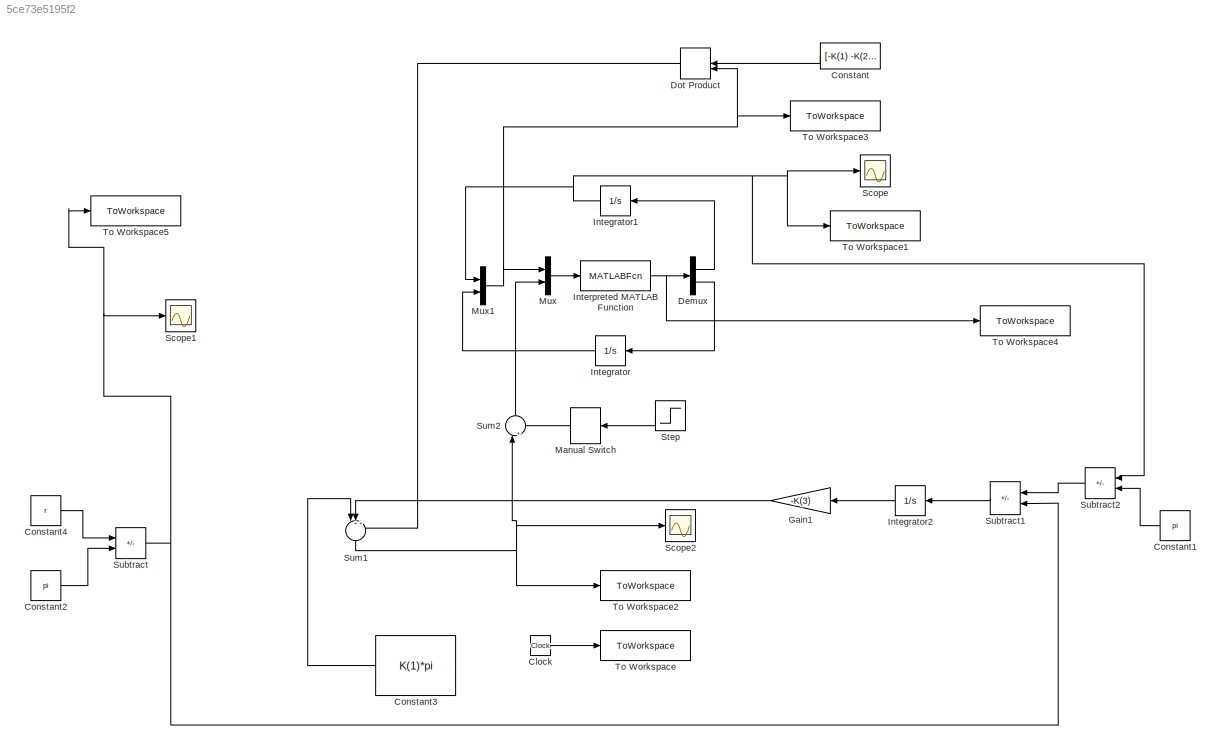
MODEL slx_5ce73e5195f2
KIND model
CONFIG AbsTol = auto
CONFIG EnableMultiTasking = off
CONFIG FixedStep = auto
CONFIG MaxStep = auto
CONFIG MinStep = auto
CONFIG RelTol = 1e-3
CONFIG SampleTimeConstraint = Unconstrained
CONFIG SolverName = VariableStepAuto
CONFIG StartTime = 0.0
CONFIG StopTime = 20
BLOCK [Clock] Clock
BLOCK [Constant] Constant
  Value = [-K(1) -K(2)]
BLOCK [Constant] Constant1
  NameLocation = top
  Value = pi
BLOCK [Constant] Constant2
  Value = pi
BLOCK [Constant] Constant3
  Value = K(1)*pi
BLOCK [Constant] Constant4
  Value = r
BLOCK [Demux] Demux
  Outputs = 2
BLOCK [DotProduct] Dot Product
  OutDataTypeStr = Inherit: Inherit via internal rule
BLOCK [Gain] Gain1
  Gain = -K(3)
  NameLocation = top
BLOCK [Integrator] Integrator
  NameLocation = top
BLOCK [Integrator] Integrator1
  NameLocation = top
BLOCK [Integrator] Integrator2
BLOCK [MATLABFcn] Interpreted MATLAB Function
  MATLABFcn = function_WP1
  OutputDimensions = 2
BLOCK [ManualSwitch] Manual Switch
  CurrentSetting = 0
  NameLocation = top
BLOCK [Mux] Mux
  DisplayOption = bar
  Inputs = 2
BLOCK [Mux] Mux1
  DisplayOption = bar
  Inputs = 2
BLOCK [Scope] Scope
  Floating = off
  NumInputPorts = 1
  ScopeSpecificationString = Simulink.scopes.TimeScopeBlockCfg('CurrentConfiguration', extmgr.ConfigurationSet(extmgr.Configuration('Core','General UI',true),extmgr.Configuration('Core','Source UI',true),extmgr.Configuration('Sources','WiredSimulink',true,'DataLoggingSaveFormat','Array','DataLoggingLimitDataPoints',true,'DataLoggingDecimation','1','DataLoggingVariableName','ScopeData1'),extmgr.Configuration('Visuals','Time Do...<+1708ch>
BLOCK [Scope] Scope1
  Floating = off
  NumInputPorts = 1
  ScopeSpecificationString = Simulink.scopes.TimeScopeBlockCfg('CurrentConfiguration', extmgr.ConfigurationSet(extmgr.Configuration('Core','General UI',true),extmgr.Configuration('Core','Source UI',true),extmgr.Configuration('Sources','WiredSimulink',true,'DataLoggingSaveFormat','Array','DataLoggingLimitDataPoints',true,'DataLoggingDecimation','1','DataLoggingVariableName','ScopeData2'),extmgr.Configuration('Visuals','Time Do...<+1695ch>
BLOCK [Scope] Scope2
  Floating = off
  NumInputPorts = 1
  ScopeSpecificationString = Simulink.scopes.TimeScopeBlockCfg('CurrentConfiguration', extmgr.ConfigurationSet(extmgr.Configuration('Core','General UI',true),extmgr.Configuration('Core','Source UI',true),extmgr.Configuration('Sources','WiredSimulink',true,'DataLoggingVariableName','ScopeData3','DataLoggingSaveFormat','Array','DataLoggingLimitDataPoints',true,'DataLoggingDecimation','1'),extmgr.Configuration('Visuals','Time Do...<+1654ch>
BLOCK [Step] Step
  After = 10000
  NameLocation = top
  SampleTime = 0
  Time = 5
BLOCK [Sum] Subtract
  IconShape = rectangular
  Inputs = +-
BLOCK [Sum] Subtract1
  IconShape = rectangular
  Inputs = +-
  NameLocation = top
BLOCK [Sum] Subtract2
  IconShape = rectangular
  Inputs = +-
  NameLocation = top
BLOCK [Sum] Sum1
  Inputs = |+++
  NameLocation = left
BLOCK [Sum] Sum2
  Inputs = |++
  NameLocation = right
BLOCK [ToWorkspace] To Workspace
  FixptAsFi = on
  MaxDataPoints = inf
  SampleTime = -1
  VariableName = t
BLOCK [ToWorkspace] To Workspace1
  FixptAsFi = on
  MaxDataPoints = inf
  SampleTime = -1
  VariableName = y
BLOCK [ToWorkspace] To Workspace2
  FixptAsFi = on
  MaxDataPoints = inf
  SampleTime = -1
  VariableName = u
BLOCK [ToWorkspace] To Workspace3
  FixptAsFi = on
  MaxDataPoints = inf
  SampleTime = -1
  VariableName = x
BLOCK [ToWorkspace] To Workspace4
  FixptAsFi = on
  MaxDataPoints = inf
  SampleTime = -1
  VariableName = xdot
BLOCK [ToWorkspace] To Workspace5
  FixptAsFi = on
  MaxDataPoints = inf
  SampleTime = -1
  VariableName = r
LINE Clock:1 -> To Workspace:1
LINE Constant1:1 -> Subtract2:2
LINE Constant2:1 -> Subtract:2
LINE Constant3:1 -> Sum1:1
LINE Constant4:1 -> Subtract:1
LINE Constant:1 -> Dot Product:1
LINE Demux:1 -> Integrator1:1
LINE Demux:2 -> Integrator:1
LINE Dot Product:1 -> Sum1:3
LINE Gain1:1 -> Sum1:2
NET Integrator1:1 -> Mux1:1, Scope:1, Subtract2:1, To Workspace1:1
LINE Integrator2:1 -> Gain1:1
LINE Integrator:1 -> Mux1:2
NET Interpreted MATLAB Function:1 -> Demux:1, To Workspace4:1
LINE Manual Switch:1 -> Sum2:2
NET Mux1:1 -> Dot Product:2, Mux:1, To Workspace3:1
LINE Mux:1 -> Interpreted MATLAB Function:1
LINE Step:1 -> Manual Switch:1
LINE Subtract1:1 -> Integrator2:1
LINE Subtract2:1 -> Subtract1:1
NET Subtract:1 -> Scope1:1, Subtract1:2, To Workspace5:1
NET Sum1:1 -> Scope2:1, Sum2:1, To Workspace2:1
LINE Sum2:1 -> Mux:2
note: NET lines group one-source signal fan-out (src -> all destinations, sorted); 1:1 wires keep LINE
